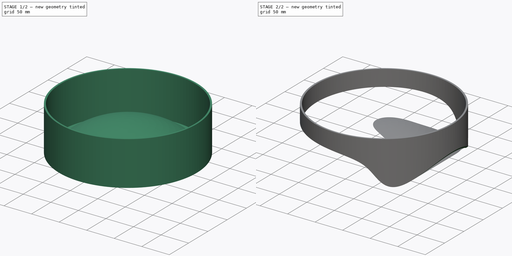
[diagram: build sequence overview — one tinted view per stage of 2, left to right]
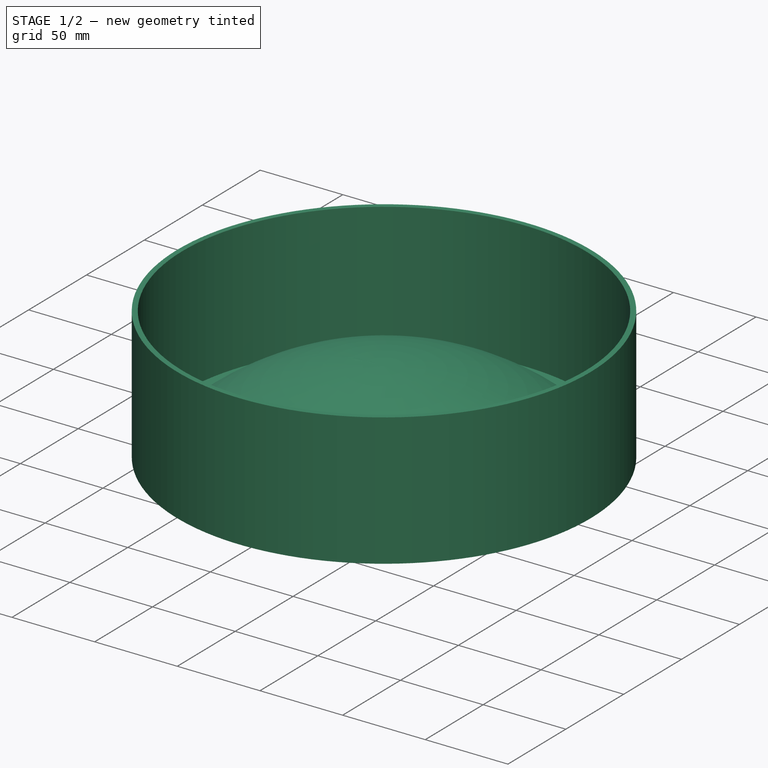
[diagram: stage 1 of 2 — iso view after this stage's code; geometry added in this stage tinted green]
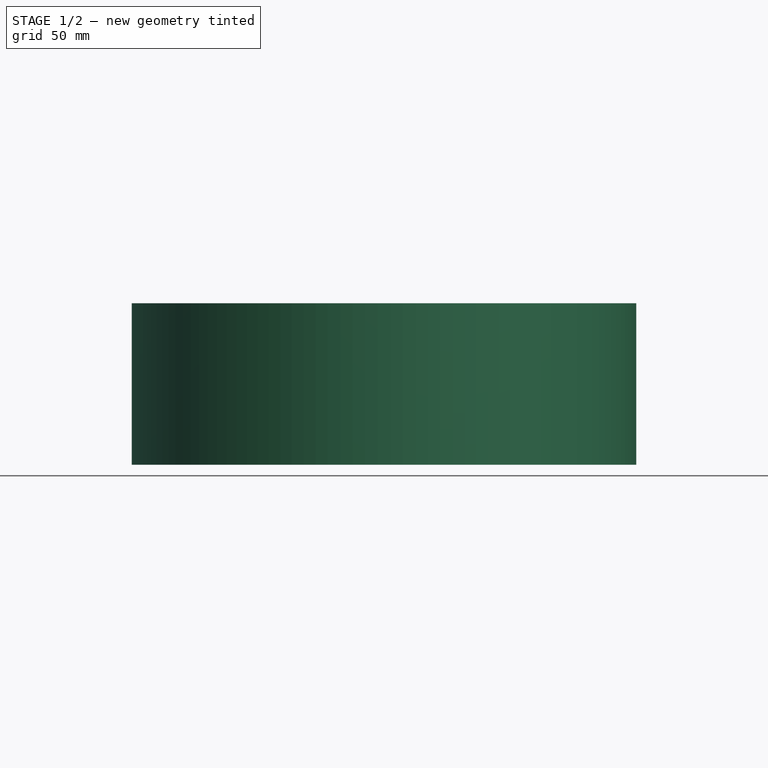
[diagram: stage 1 of 2 — front view after this stage's code; geometry added in this stage tinted green]
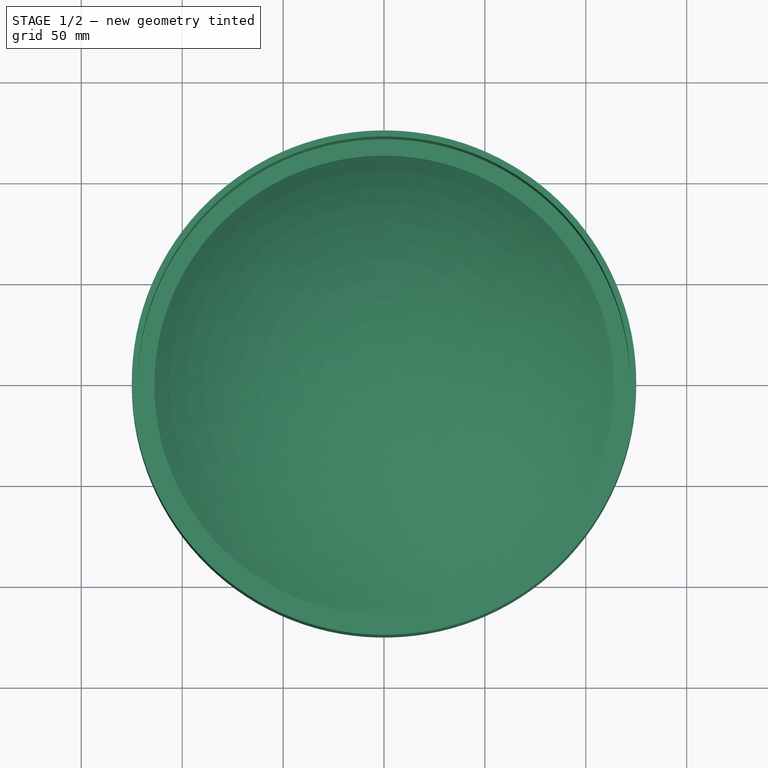
[diagram: stage 1 of 2 — top view after this stage's code; geometry added in this stage tinted green]
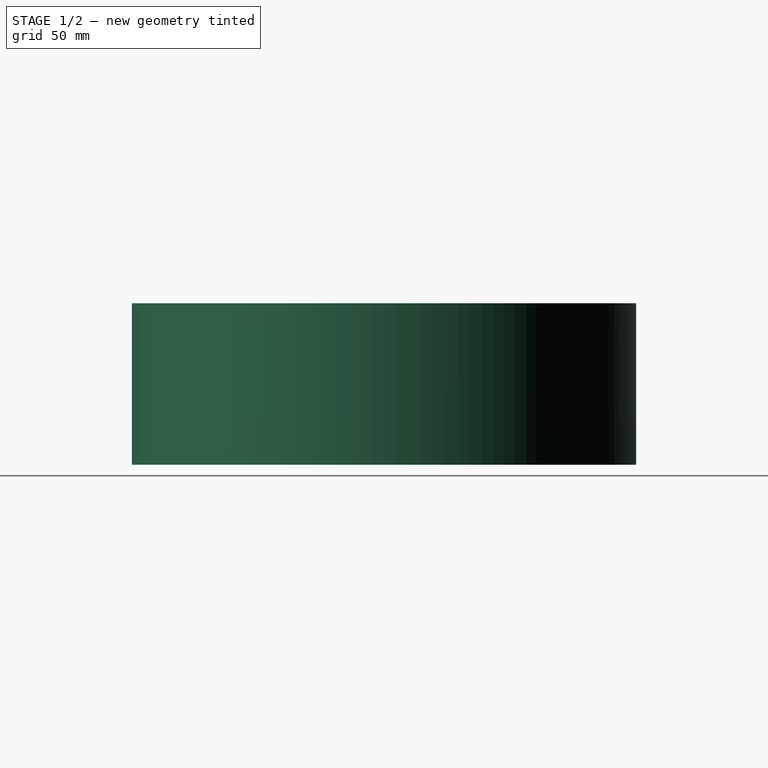
[diagram: stage 1 of 2 — right view after this stage's code; geometry added in this stage tinted green]
FCSTD DOCUMENT  (FreeCAD 0.19R24291 (Git))
Label: test2
License: All rights reserved
LicenseURL: http://en.wikipedia.org/wiki/All_rights_reserved
objects: Sketcher::SketchObject×3, PartDesign::Revolution×1, PartDesign::Pocket×1, PartDesign::Body×1, Part::Cylinder×1
note: 9 computed .brp shape members not serialized (recipe doc carries the construction recipe); baked Part::Feature solids carry a one-line shape summary decoded from their .brp

FEATURE [Sketcher::SketchObject] Sketch
  FullyConstrained = false
  MapMode = 5
  Placement = pos=(0,0,0) rot=(1,0,0;1.5708rad)
  Support = -> [XZ_Plane]
  sketch-geometry (8):
    g0: ArcOfCircle CenterX=0 CenterY=-111.313 CenterZ=0 NormalX=0 NormalY=0 NormalZ=1 AngleXU=0 Radius=161.313 StartAngle=1.5708 EndAngle=2.35402
    g1: LineSegment StartX=-113.818 StartY=3 StartZ=0 EndX=-122 EndY=3 EndZ=0
    g2: LineSegment StartX=-122 StartY=3 StartZ=0 EndX=-122 EndY=80 EndZ=0
    g3: LineSegment StartX=-122 StartY=80 StartZ=0 EndX=-125 EndY=80 EndZ=0
    g4: LineSegment StartX=-125 StartY=80 StartZ=0 EndX=-125 EndY=-1.42e-14 EndZ=0
    g5: LineSegment StartX=-125 StartY=-1.42e-14 StartZ=0 EndX=-113.818 EndY=-1.42e-14 EndZ=0
    g6: ArcOfCircle CenterX=0 CenterY=-114.313 CenterZ=0 NormalX=0 NormalY=0 NormalZ=1 AngleXU=0 Radius=161.313 StartAngle=1.5708 EndAngle=2.35402
    g7: LineSegment StartX=9.9e-15 StartY=50 StartZ=0 EndX=9.9e-15 EndY=47 EndZ=0
  constraints (25):
    c: Coincident(g0,g1)
    c: Horizontal(g1)
    c: Coincident(g1,g2)
    c: Vertical(g2)
    c: Coincident(g2,g3)
    c: Coincident(g3,g4)
    c: Vertical(g4)
    c: Coincident(g4,g5)
    c: Horizontal(g5)
    c: Coincident(g5,g6)
    c: Horizontal(g3)
    c: DistanceX(g3,g3) = 3
    c: DistanceY(g4,g1) = 3
    c: PointOnObject(g5,g-1)
    c: DistanceX(g4,g-1) = 125
    c: DistanceY(g4,g4) = 80
    c: Coincident(g7,g0)
    c: Coincident(g7,g6)
    c: Vertical(g7)
    c: PointOnObject(g0,g-2)
    c: PointOnObject(g0,g-2)
    c: PointOnObject(g6,g-2)
    c: DistanceY(g6,g0) = 3
    c: DistanceY(g-1,g0) = 50
    c: DistanceY(g6,g0) = 3
FEATURE [PartDesign::Revolution] Revolution
  Angle = 360
  Axis = (0,2e-16,1)
  Base = (0,0,0)
  Placement = pos=(0,0,0) rot=(1,0,0;1.5708rad)
  Profile = -> Sketch
  ReferenceAxis = -> Sketch [V_Axis]
  Refine = true
FEATURE [Sketcher::SketchObject] Sketch002
  FullyConstrained = false
  MapMode = 5
  Placement = pos=(0,0,0) rot=(1,0,0;1.5708rad)
  Support = -> [XZ_Plane]
  sketch-geometry (12):
    g0-g4: Circle x5 (B-spline internal-alignment scaffolding for g5; pole/knot coordinates omitted)
    g5: BSplineCurve PolesCount=5 KnotsCount=3 Degree=3 IsPeriodic=0
    g6: GeomPoint X=-146.821 Y=53.2814 Z=0
    g7: GeomPoint X=55.9545 Y=28.7748 Z=0
    g8: GeomPoint X=143.991 Y=68.4816 Z=0
    g9: LineSegment StartX=143.991 StartY=68.4816 StartZ=0 EndX=143.991 EndY=-53.8349 EndZ=0
    g10: LineSegment StartX=143.991 StartY=-53.8349 StartZ=0 EndX=-146.821 EndY=-53.8349 EndZ=0
    g11: LineSegment StartX=-146.821 StartY=-53.8349 StartZ=0 EndX=-146.821 EndY=53.2814 EndZ=0
  constraints (13):
    c: Weight(g0) = 1
    c: Equal(g0, g1-g4) x4
    c: InternalAlignment(g0-g4 -> g5) x5
    c: InternalAlignment(g6,g5)
    c: InternalAlignment(g7,g5)
    c: InternalAlignment(g8,g5)
    c: Coincident(g9,g5)
    c: Vertical(g9)
    c: Coincident(g9,g10)
    c: Horizontal(g10)
    c: Coincident(g10,g11)
    c: Coincident(g11,g5)
    c: Vertical(g11)
FEATURE [PartDesign::Body] Body
  Group = -> [Sketch,Revolution,Sketch001,Pocket,Sketch002]
  Origin = -> Origin
  Tip = -> Pocket
FEATURE [Part::Cylinder] Cylinder
  Angle = 360
  AttacherType = Attacher::AttachEngine3D
  Height = 10
  Radius = 2
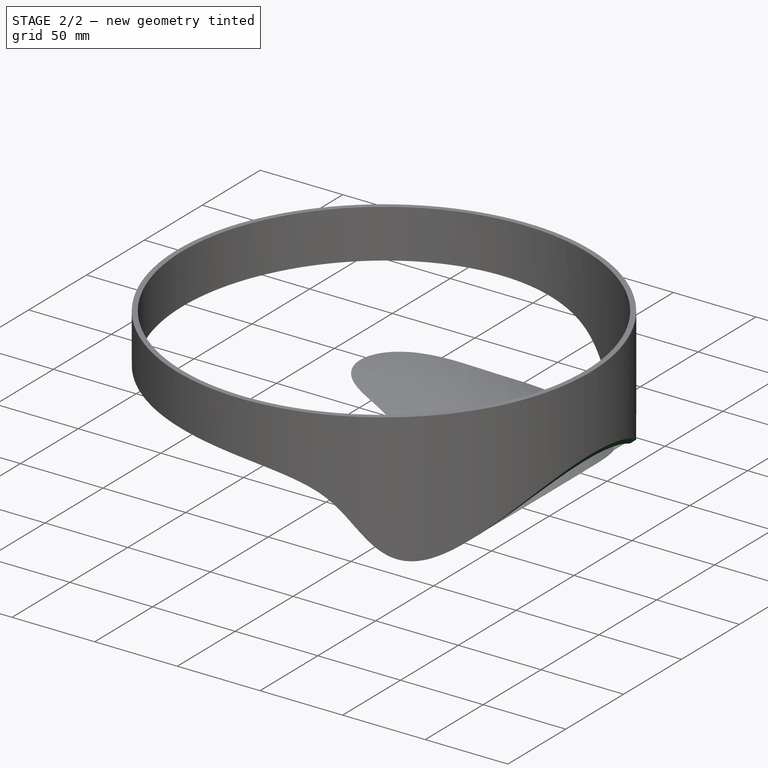
[diagram: stage 2 of 2 — iso view after this stage's code; geometry added in this stage tinted green]
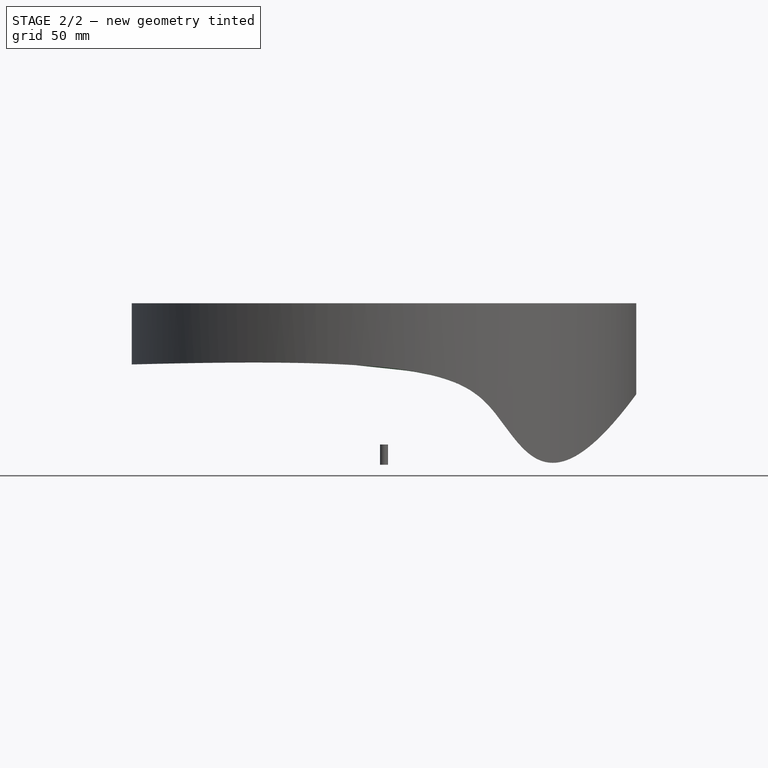
[diagram: stage 2 of 2 — front view after this stage's code; geometry added in this stage tinted green]
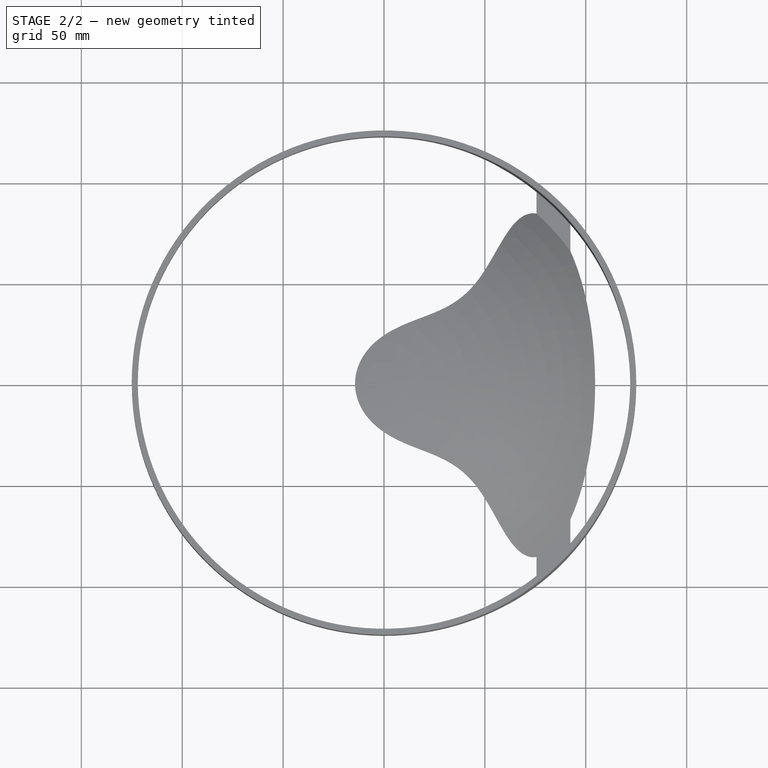
[diagram: stage 2 of 2 — top view after this stage's code; geometry added in this stage tinted green]
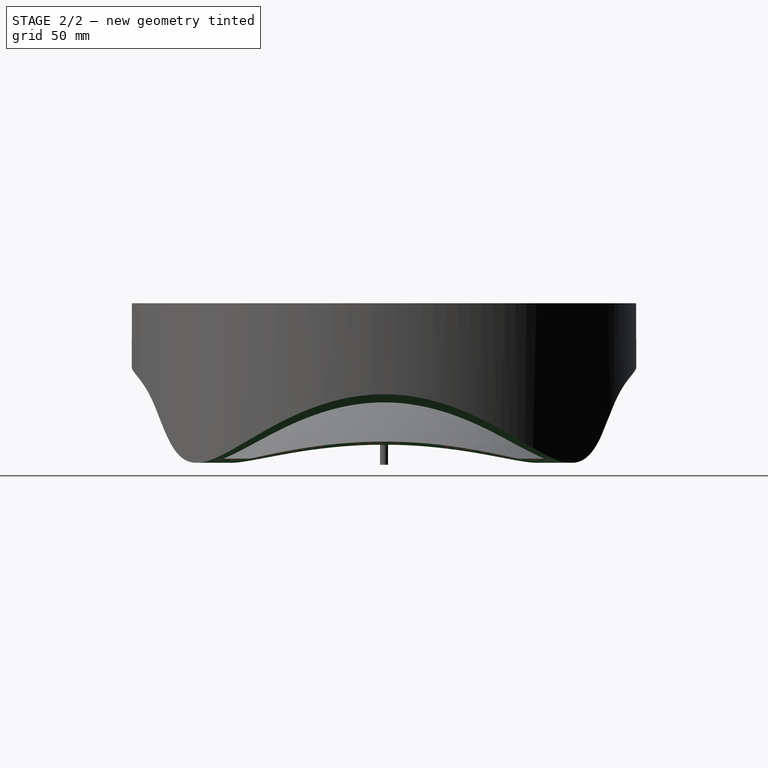
[diagram: stage 2 of 2 — right view after this stage's code; geometry added in this stage tinted green]
FEATURE [Sketcher::SketchObject] Sketch001
  FullyConstrained = false
  MapMode = 5
  Placement = pos=(0,0,0) rot=(1,0,0;1.5708rad)
  Support = -> [XZ_Plane]
  sketch-geometry (12):
    g0-g4: Circle x5 (B-spline internal-alignment scaffolding for g5; pole/knot coordinates omitted)
    g5: BSplineCurve PolesCount=5 KnotsCount=3 Degree=3 IsPeriodic=0
    g6: GeomPoint X=-146.492 Y=49.0376 Z=0
    g7: GeomPoint X=55.7708 Y=24.6599 Z=0
    g8: GeomPoint X=144.319 Y=63.951 Z=0
    g9: LineSegment StartX=144.319 StartY=63.951 StartZ=0 EndX=144.319 EndY=-53.8349 EndZ=0
    g10: LineSegment StartX=144.319 StartY=-53.8349 StartZ=0 EndX=-146.492 EndY=-53.8349 EndZ=0
    g11: LineSegment StartX=-146.492 StartY=-53.8349 StartZ=0 EndX=-146.492 EndY=49.0376 EndZ=0
  constraints (13):
    c: Weight(g0) = 1
    c: Equal(g0, g1-g4) x4
    c: InternalAlignment(g0-g4 -> g5) x5
    c: InternalAlignment(g6,g5)
    c: InternalAlignment(g7,g5)
    c: InternalAlignment(g8,g5)
    c: Coincident(g9,g5)
    c: Vertical(g9)
    c: Coincident(g9,g10)
    c: Horizontal(g10)
    c: Coincident(g10,g11)
    c: Coincident(g11,g5)
    c: Vertical(g11)
FEATURE [PartDesign::Pocket] Pocket
  BaseFeature = -> Revolution
  Length = 500
  Length2 = 100
  Midplane = true
  Placement = pos=(0,0,0) rot=(1,0,0;1.5708rad)
  Profile = -> Sketch001
  Refine = true
  Type = 0
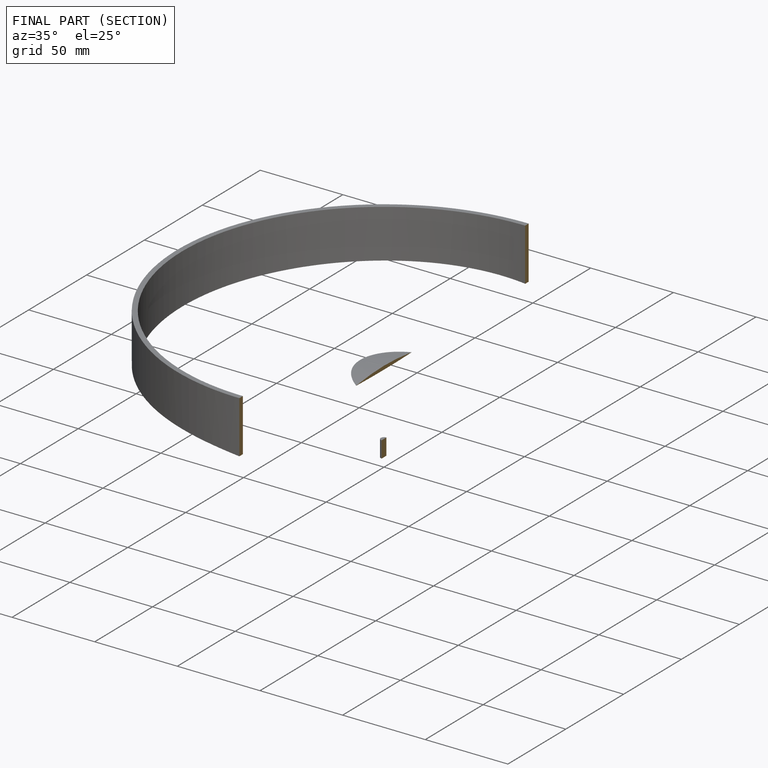
[diagram: finished part — half-section view (interior)]
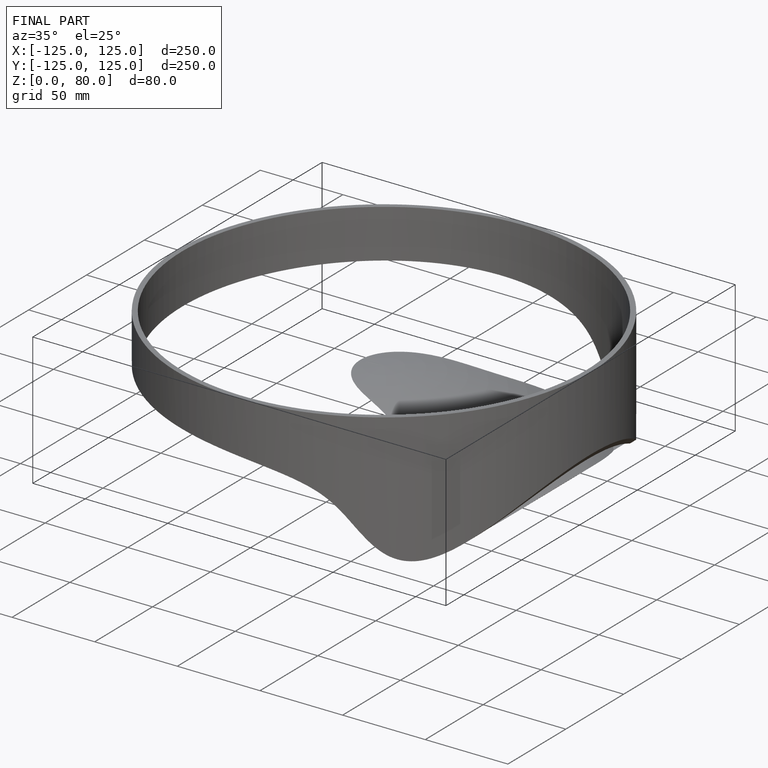
[diagram: finished part — iso view with bounding-box wireframe]
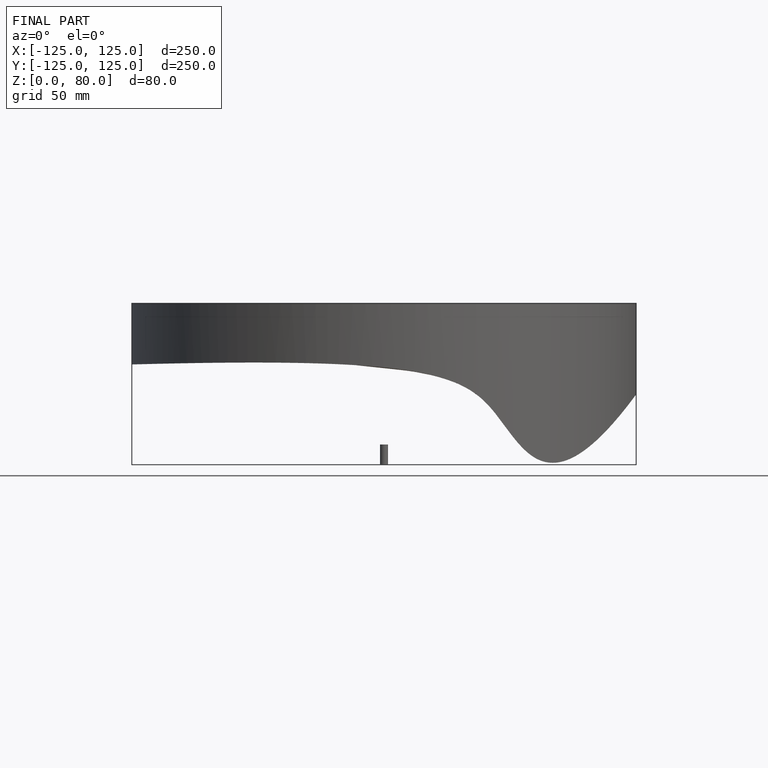
[diagram: finished part — front view with bounding-box wireframe]
